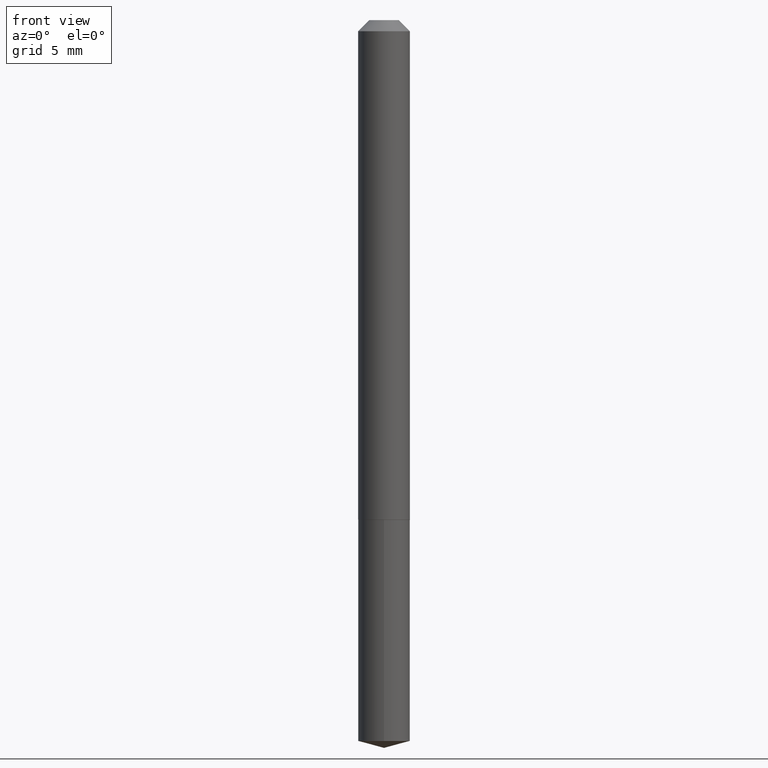
[diagram: clean part render]
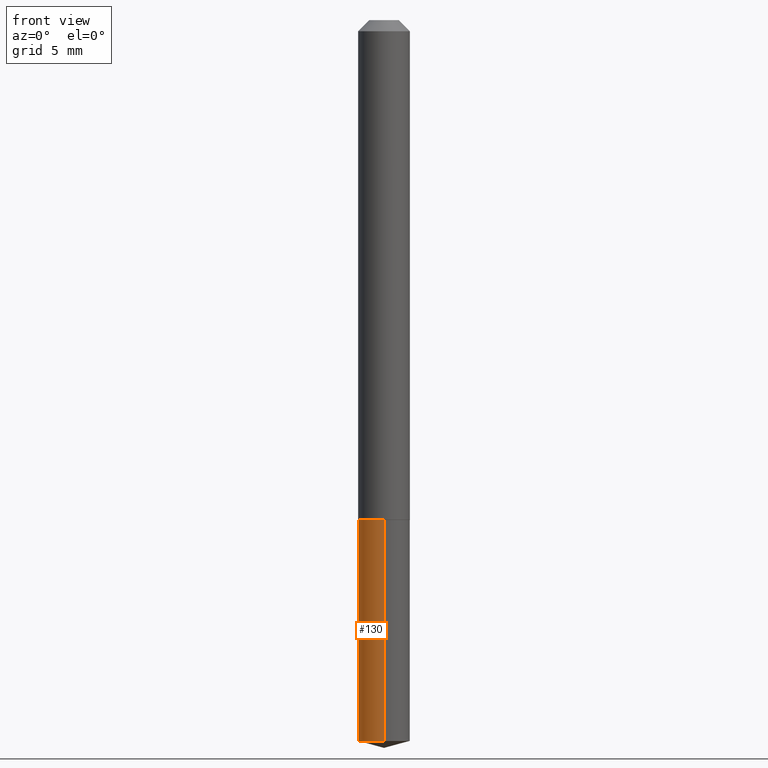
[diagram: same view with one face highlighted and labeled with its STEP entity id]
A machine part, front view. The second image highlights one B-rep face of the part: STEP entity #130.
In plain terms, the highlighted cylindrical surface (edge-blend (fillet) strip) has radius 1.8504 mm, axis along (-0, 0, 1).
Its self-contained STEP definition (entity closure, byte-faithful):
#1 = AXIS2_PLACEMENT_3D ( 'NONE', #50, #348, #54 ) ;
#13 = CARTESIAN_POINT ( 'NONE',  ( 5.176303830012825715E-16, 0.07284999999999293430, -2.027679901331393530 ) ) ;
#16 = AXIS2_PLACEMENT_3D ( 'NONE', #203, #48, #288 ) ;
#19 = VERTEX_POINT ( 'NONE', #193 ) ;
#45 = DIRECTION ( 'NONE',  ( -2.445607014426195312E-29, 3.491283416775625299E-15, 1.000000000000000000 ) ) ;
#48 = DIRECTION ( 'NONE',  ( -2.445607014426195312E-29, 3.491283416775625299E-15, 1.000000000000000000 ) ) ;
#50 = CARTESIAN_POINT ( 'NONE',  ( 3.437106407093210258E-29, -4.907277021744042169E-15, -1.405500000000000416 ) ) ;
#54 = DIRECTION ( 'NONE',  ( -6.982962677686265922E-15, -1.000000000000000000, 3.749962928845934523E-15 ) ) ;
#59 = EDGE_CURVE ( 'NONE', #19, #84, #118, .T. ) ;
#66 = ORIENTED_EDGE ( 'NONE', *, *, #104, .F. ) ;
#74 = ORIENTED_EDGE ( 'NONE', *, *, #354, .T. ) ;
#82 = EDGE_CURVE ( 'NONE', #367, #204, #93, .T. ) ;
#84 = VERTEX_POINT ( 'NONE', #256 ) ;
#85 = CYLINDRICAL_SURFACE ( 'NONE', #16, 0.07284999999999999809 ) ;
#93 = CIRCLE ( 'NONE', #284, 0.07284999999999999809 ) ;
#95 = CARTESIAN_POINT ( 'NONE',  ( -5.087088310693949799E-16, -0.07285000000000708964, -2.027679901331393086 ) ) ;
#104 = EDGE_CURVE ( 'NONE', #367, #19, #113, .T. ) ;
#113 = LINE ( 'NONE', #316, #298 ) ;
#118 = CIRCLE ( 'NONE', #1, 0.07284999999999999809 ) ;
#130 = ADVANCED_FACE ( 'NONE', ( #233 ), #85, .T. ) ;
#136 = ORIENTED_EDGE ( 'NONE', *, *, #59, .F. ) ;
#151 = LINE ( 'NONE', #245, #210 ) ;
#174 = CARTESIAN_POINT ( 'NONE',  ( 4.958713938024262503E-29, -7.079483393513429286E-15, -2.027679901331393086 ) ) ;
#193 = CARTESIAN_POINT ( 'NONE',  ( 5.176303830012825715E-16, 0.07284999999999508535, -1.405500000000000638 ) ) ;
#203 = CARTESIAN_POINT ( 'NONE',  ( 3.437106407093210258E-29, -4.907277021744042169E-15, -1.405500000000000416 ) ) ;
#204 = VERTEX_POINT ( 'NONE', #95 ) ;
#207 = DIRECTION ( 'NONE',  ( -2.445607014426195312E-29, 3.491283416775625299E-15, 1.000000000000000000 ) ) ;
#210 = VECTOR ( 'NONE', #207, 39.37007874015748143 ) ;
#217 = ORIENTED_EDGE ( 'NONE', *, *, #82, .T. ) ;
#233 = FACE_OUTER_BOUND ( 'NONE', #349, .T. ) ;
#245 = CARTESIAN_POINT ( 'NONE',  ( -5.087088310694100669E-16, -0.07285000000000491083, -1.405499999999999972 ) ) ;
#256 = CARTESIAN_POINT ( 'NONE',  ( -5.087088310694100669E-16, -0.07285000000000491083, -1.405499999999999972 ) ) ;
#257 = DIRECTION ( 'NONE',  ( -6.982962677686265922E-15, -1.000000000000000000, 3.749962928845934523E-15 ) ) ;
#284 = AXIS2_PLACEMENT_3D ( 'NONE', #174, #45, #257 ) ;
#288 = DIRECTION ( 'NONE',  ( -6.982962677686265922E-15, -1.000000000000000000, 3.749962928845934523E-15 ) ) ;
#298 = VECTOR ( 'NONE', #322, 39.37007874015748143 ) ;
#316 = CARTESIAN_POINT ( 'NONE',  ( 5.176303830012672873E-16, 0.07284999999999508535, -1.405500000000000638 ) ) ;
#322 = DIRECTION ( 'NONE',  ( -2.445607014426195312E-29, 3.491283416775625299E-15, 1.000000000000000000 ) ) ;
#348 = DIRECTION ( 'NONE',  ( -2.445607014426195312E-29, 3.491283416775625299E-15, 1.000000000000000000 ) ) ;
#349 = EDGE_LOOP ( 'NONE', ( #66, #217, #74, #136 ) ) ;
#354 = EDGE_CURVE ( 'NONE', #204, #84, #151, .T. ) ;
#367 = VERTEX_POINT ( 'NONE', #13 ) ;